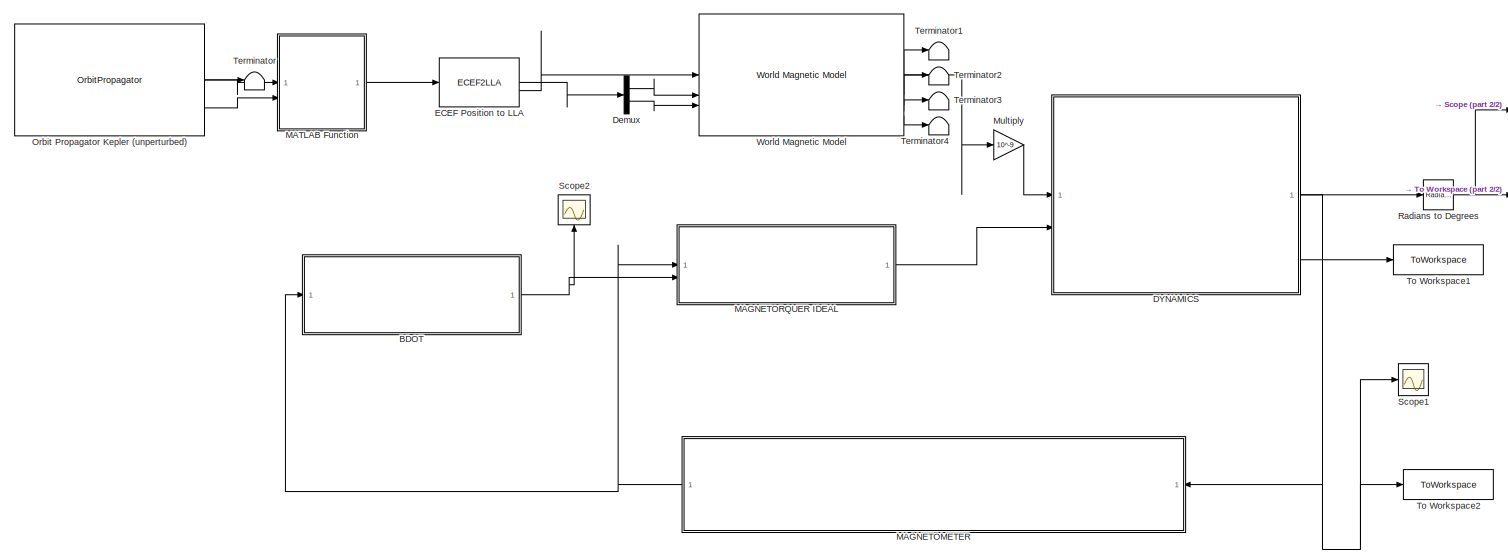
[diagram: root canvas - part 1/2, most of the canvas]
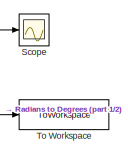
[diagram: root canvas - part 2/2, top right region]
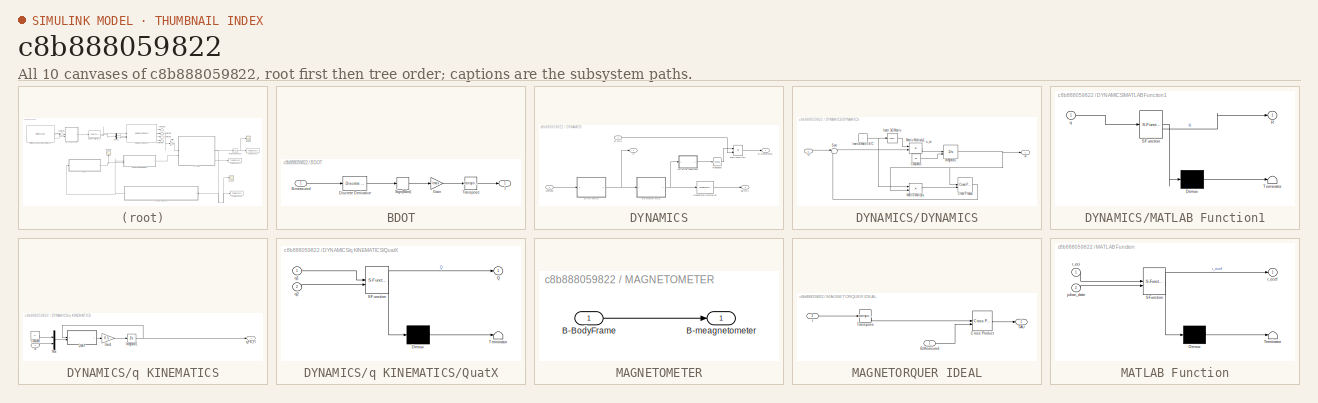
[diagram: thumbnail index - all 10 canvases of the model, root first then tree order]
MODEL slx_c8b888059822
KIND model
CONFIG AbsTol = auto
CONFIG EnableMultiTasking = off
CONFIG FixedStep = auto
CONFIG MaxStep = auto
CONFIG MinStep = auto
CONFIG RelTol = 1e-3
CONFIG SampleTimeConstraint = Unconstrained
CONFIG SolverName = VariableStepAuto
CONFIG StartTime = 0.0
CONFIG StopTime = 16727
BLOCK [SubSystem] BDOT
BLOCK [Inport] BDOT/B-measured
BLOCK [Reference] BDOT/Discrete Derivative  REF=simulink/Discrete/Discrete Derivative
  SourceBlock = simulink/Discrete/Discrete Derivative
  SourceType = Discrete Derivative
BLOCK [Gain] BDOT/Gain
  Gain = -Imax
BLOCK [Outport] BDOT/I
BLOCK [Signum] BDOT/Sign(Bdot)
BLOCK [Math] BDOT/Transpose
  Operator = transpose
BLOCK [SubSystem] DYNAMICS
BLOCK [Outport] DYNAMICS/B-BodyFrame
BLOCK [Inport] DYNAMICS/B-ECI
BLOCK [SubSystem] DYNAMICS/DYNAMICS
BLOCK [Constant] DYNAMICS/DYNAMICS/Constant3
  Value = w0
BLOCK [Reference] DYNAMICS/DYNAMICS/Cross Product  REF=matrix_library/Cross Product
  SourceBlock = matrix_library/Cross Product
  SourceType = CrossProduct
BLOCK [Inport] DYNAMICS/DYNAMICS/G
BLOCK [Constant] DYNAMICS/DYNAMICS/Inertia matrix S//C
  Value = I
BLOCK [Integrator] DYNAMICS/DYNAMICS/Integrator1
  InitialConditionSource = external
BLOCK [Reference] DYNAMICS/DYNAMICS/Invert 3x3 Matrix  REF=aerolibutil/Invert 
3x3 Matrix
  SourceBlock = aerolibutil/Invert \n3x3 Matrix
  SourceType = Invert 3x3 Matrix
BLOCK [Product] DYNAMICS/DYNAMICS/Matrix Multiply
  Multiplication = Matrix(*)
BLOCK [Product] DYNAMICS/DYNAMICS/Matrix Multiply1
  Multiplication = Matrix(*)
BLOCK [Sum] DYNAMICS/DYNAMICS/Sum
  Inputs = |+-
  OutDataTypeStr = Inherit: Same as first input
BLOCK [Outport] DYNAMICS/DYNAMICS/w
BLOCK [SubSystem] DYNAMICS/MATLAB Function1
  ErrorFcn = Stateflow.Translate.translate
  PermitHierarchicalResolution = ExplicitOnly
  SFBlockType = MATLAB Function
  TreatAsAtomicUnit = on
BLOCK [Demux] DYNAMICS/MATLAB Function1/ Demux 
  Outputs = 1
BLOCK [S-Function] DYNAMICS/MATLAB Function1/ SFunction 
  EnableBusSupport = on
  FunctionName = sf_sfun
  PortCounts = [1 2]
  SFcnIsStateOwnerBlock = off
  SFunctionDeploymentMode = off
  Tag = Stateflow S-Function 1
BLOCK [Terminator] DYNAMICS/MATLAB Function1/ Terminator 
BLOCK [Outport] DYNAMICS/MATLAB Function1/R
BLOCK [Inport] DYNAMICS/MATLAB Function1/q
BLOCK [Product] DYNAMICS/MatrixMultiply
  Multiplication = Matrix(*)
BLOCK [Inport] DYNAMICS/Moment
  Port = 2
BLOCK [Reference] DYNAMICS/Quaternion Normalize  REF=sharedutil/Quaternion
Normalize
  LibrarySourceBlock = aerolibutil/Quaternion\nNormalize
  SourceBlock = sharedutil/Quaternion\nNormalize
  SourceType = Quaternion Normalize
BLOCK [Math] DYNAMICS/Transpose
  Operator = transpose
BLOCK [SubSystem] DYNAMICS/q KINEMATICS
BLOCK [Constant] DYNAMICS/q KINEMATICS/Constant
  Value = 0
BLOCK [Gain] DYNAMICS/q KINEMATICS/Gain1
  Gain = 0.5
BLOCK [Integrator] DYNAMICS/q KINEMATICS/Integrator1
  InitialCondition = Q0
BLOCK [Mux] DYNAMICS/q KINEMATICS/Mux
  DisplayOption = bar
  Inputs = 2
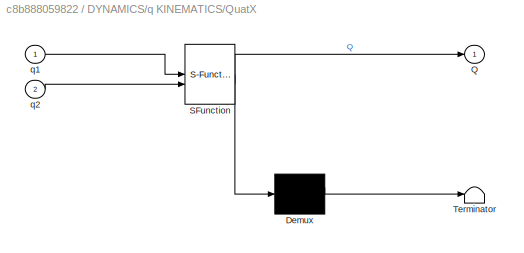
BLOCK [SubSystem] DYNAMICS/q KINEMATICS/QuatX
  ErrorFcn = Stateflow.Translate.translate
  PermitHierarchicalResolution = ExplicitOnly
  SFBlockType = MATLAB Function
  TreatAsAtomicUnit = on
BLOCK [Demux] DYNAMICS/q KINEMATICS/QuatX/ Demux 
  Outputs = 1
BLOCK [S-Function] DYNAMICS/q KINEMATICS/QuatX/ SFunction 
  EnableBusSupport = on
  FunctionName = sf_sfun
  PortCounts = [2 2]
  SFcnIsStateOwnerBlock = off
  SFunctionDeploymentMode = off
  Tag = Stateflow S-Function 3
BLOCK [Terminator] DYNAMICS/q KINEMATICS/QuatX/ Terminator 
BLOCK [Outport] DYNAMICS/q KINEMATICS/QuatX/Q
  VectorParamsAs1DForOutWhenUnconnected = off
BLOCK [Inport] DYNAMICS/q KINEMATICS/QuatX/q1
BLOCK [Inport] DYNAMICS/q KINEMATICS/QuatX/q2
  Port = 2
BLOCK [Outport] DYNAMICS/q KINEMATICS/q_FB_FI
  VectorParamsAs1DForOutWhenUnconnected = off
BLOCK [Inport] DYNAMICS/q KINEMATICS/w
BLOCK [Outport] DYNAMICS/qBODY
  Port = 3
BLOCK [Outport] DYNAMICS/w
  Port = 2
BLOCK [Demux] Demux
  Outputs = 2
BLOCK [ECEF2LLA] ECEF Position to LLA
BLOCK [SubSystem] MAGNETOMETER
  NameLocation = top
BLOCK [Inport] MAGNETOMETER/B-BodyFrame
BLOCK [Outport] MAGNETOMETER/B-meagnetometer
BLOCK [SubSystem] MAGNETORQUER IDEAL
BLOCK [Inport] MAGNETORQUER IDEAL/B-Measured
BLOCK [Reference] MAGNETORQUER IDEAL/Cross Product  REF=matrix_library/Cross Product
  LibrarySourceBlock = simulink/Matrix\nOperations/Cross Product
  SourceBlock = matrix_library/Cross Product
  SourceType = CrossProduct
BLOCK [Inport] MAGNETORQUER IDEAL/I
  Port = 2
BLOCK [Outport] MAGNETORQUER IDEAL/TAU
BLOCK [Math] MAGNETORQUER IDEAL/Transpose
  Operator = transpose
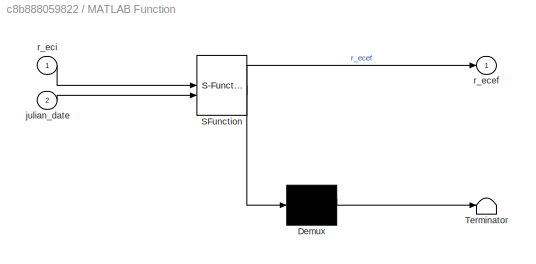
BLOCK [SubSystem] MATLAB Function
  ErrorFcn = Stateflow.Translate.translate
  PermitHierarchicalResolution = ExplicitOnly
  SFBlockType = MATLAB Function
  TreatAsAtomicUnit = on
BLOCK [Demux] MATLAB Function/ Demux 
  Outputs = 1
BLOCK [S-Function] MATLAB Function/ SFunction 
  EnableBusSupport = on
  FunctionName = sf_sfun
  PortCounts = [2 2]
  SFcnIsStateOwnerBlock = off
  SFunctionDeploymentMode = off
  Tag = Stateflow S-Function 2
BLOCK [Terminator] MATLAB Function/ Terminator 
BLOCK [Inport] MATLAB Function/julian_date
  Port = 2
BLOCK [Outport] MATLAB Function/r_ecef
BLOCK [Inport] MATLAB Function/r_eci
BLOCK [Gain] Multiply
  Gain = 10^-9
BLOCK [OrbitPropagator] Orbit Propagator Kepler (unperturbed)
  argPeriapsis = aop
  customJ2 = 1.0826269e-03
  customMu = 4.305e13
  customOmega = 4.06125949e-3
  customR = 3396200
  eccentricity = ecc
  fixedPosition = [-4142689.0 -2676864.7 -4669861.6]
  fixedVelocity = [1452.7 -6720.7 2568.1]
  inclination = inc
  inertialPosition = [3649700.0 3308200.0 -4676600.0]
  inertialVelocity = [-2750.8 6666.4 2573.4]
  raan = raan
  semiMajorAxis = alt
BLOCK [Reference] Radians to Degrees  REF=simulink_extras/Transformations/Radians
to Degrees
  SourceBlock = simulink_extras/Transformations/Radians\nto Degrees
  SourceType = RadiansToDegrees
BLOCK [Scope] Scope
  Floating = off
  NumInputPorts = 1
  ScopeSpecificationString = Simulink.scopes.TimeScopeBlockCfg('CurrentConfiguration', extmgr.ConfigurationSet(extmgr.Configuration('Core','General UI',true),extmgr.Configuration('Core','Source UI',true),extmgr.Configuration('Sources','WiredSimulink',true),extmgr.Configuration('Visuals','Time Domain',true,'SerializedDisplays',{struct('MinYLimReal','-1012.8111','MaxYLimReal','1012.67416','YLabelReal','','MinYLimMag','  0.00000...<+1522ch>
BLOCK [Scope] Scope1
  Floating = off
  NumInputPorts = 1
  ScopeSpecificationString = Simulink.scopes.TimeScopeBlockCfg('CurrentConfiguration', extmgr.ConfigurationSet(extmgr.Configuration('Core','General UI',true),extmgr.Configuration('Core','Source UI',true),extmgr.Configuration('Sources','WiredSimulink',true,'DataLoggingVariableName','ScopeData1'),extmgr.Configuration('Visuals','Time Domain',true,'SerializedDisplays',{struct('MinYLimReal','-0.00007','MaxYLimReal','0.00007','YLab...<+1517ch>
BLOCK [Scope] Scope2
  Floating = off
  NameLocation = right
  NumInputPorts = 1
  ScopeSpecificationString = Simulink.scopes.TimeScopeBlockCfg('CurrentConfiguration', extmgr.ConfigurationSet(extmgr.Configuration('Core','General UI',true),extmgr.Configuration('Core','Source UI',true),extmgr.Configuration('Sources','WiredSimulink',true,'DataLoggingVariableName','ScopeData2'),extmgr.Configuration('Visuals','Time Domain',true,'SerializedDisplays',{struct('MinYLimReal','-0.26787','MaxYLimReal','0.26787','YLab...<+1499ch>
BLOCK [Terminator] Terminator
BLOCK [Terminator] Terminator1
BLOCK [Terminator] Terminator2
BLOCK [Terminator] Terminator3
BLOCK [Terminator] Terminator4
BLOCK [ToWorkspace] To Workspace
  FixptAsFi = on
  MaxDataPoints = inf
  SampleTime = -1
  SaveFormat = Timeseries
  VariableName = wDEG
BLOCK [ToWorkspace] To Workspace1
  FixptAsFi = on
  MaxDataPoints = inf
  SampleTime = -1
  SaveFormat = Timeseries
  VariableName = qOUT
BLOCK [ToWorkspace] To Workspace2
  FixptAsFi = on
  MaxDataPoints = inf
  SampleTime = -1
  SaveFormat = Timeseries
  VariableName = Bout
BLOCK [Reference] World Magnetic Model  REF=aerolibgravity2/World Magnetic Model
  AttributesFormatString = %<model>
  SourceBlock = aerolibgravity2/World Magnetic Model
  SourceType = WorldMagneticModel
ANNOTATION DYNAMICS/DYNAMICS: w_dot
LINE BDOT/B-measured:1 -> BDOT/Discrete Derivative:1
LINE BDOT/Discrete Derivative:1 -> BDOT/Sign(Bdot):1
LINE BDOT/Gain:1 -> BDOT/Transpose:1
LINE BDOT/Sign(Bdot):1 -> BDOT/Gain:1
LINE BDOT/Transpose:1 -> BDOT/I:1
NET BDOT:1 -> MAGNETORQUER IDEAL:2, Scope2:1
LINE DYNAMICS/B-ECI:1 -> DYNAMICS/MatrixMultiply:2
LINE DYNAMICS/DYNAMICS/Constant3:1 -> DYNAMICS/DYNAMICS/Integrator1:2
LINE DYNAMICS/DYNAMICS/Cross Product:1 -> DYNAMICS/DYNAMICS/Sum:2
LINE DYNAMICS/DYNAMICS/G:1 -> DYNAMICS/DYNAMICS/Sum:1
NET DYNAMICS/DYNAMICS/Inertia matrix S//C:1 -> DYNAMICS/DYNAMICS/Invert 3x3 Matrix:1, DYNAMICS/DYNAMICS/Matrix Multiply:1
NET DYNAMICS/DYNAMICS/Integrator1:1 -> DYNAMICS/DYNAMICS/Cross Product:1, DYNAMICS/DYNAMICS/Matrix Multiply:2, DYNAMICS/DYNAMICS/w:1
LINE DYNAMICS/DYNAMICS/Invert 3x3 Matrix:1 -> DYNAMICS/DYNAMICS/Matrix Multiply1:1
LINE DYNAMICS/DYNAMICS/Matrix Multiply1:1 -> DYNAMICS/DYNAMICS/Integrator1:1
LINE DYNAMICS/DYNAMICS/Matrix Multiply:1 -> DYNAMICS/DYNAMICS/Cross Product:2
LINE DYNAMICS/DYNAMICS/Sum:1 -> DYNAMICS/DYNAMICS/Matrix Multiply1:2
NET DYNAMICS/DYNAMICS:1 -> DYNAMICS/q KINEMATICS:1, DYNAMICS/w:1
LINE DYNAMICS/MATLAB Function1:1 -> DYNAMICS/Transpose:1
LINE DYNAMICS/MatrixMultiply:1 -> DYNAMICS/B-BodyFrame:1
LINE DYNAMICS/Moment:1 -> DYNAMICS/DYNAMICS:1
LINE DYNAMICS/Quaternion Normalize:1 -> DYNAMICS/qBODY:1
LINE DYNAMICS/Transpose:1 -> DYNAMICS/MatrixMultiply:1
LINE DYNAMICS/q KINEMATICS/Constant:1 -> DYNAMICS/q KINEMATICS/Mux:1
LINE DYNAMICS/q KINEMATICS/Gain1:1 -> DYNAMICS/q KINEMATICS/Integrator1:1
NET DYNAMICS/q KINEMATICS/Integrator1:1 -> DYNAMICS/q KINEMATICS/QuatX:1, DYNAMICS/q KINEMATICS/q_FB_FI:1
LINE DYNAMICS/q KINEMATICS/Mux:1 -> DYNAMICS/q KINEMATICS/QuatX:2
LINE DYNAMICS/q KINEMATICS/QuatX:1 -> DYNAMICS/q KINEMATICS/Gain1:1
LINE DYNAMICS/q KINEMATICS/w:1 -> DYNAMICS/q KINEMATICS/Mux:2
NET DYNAMICS/q KINEMATICS:1 -> DYNAMICS/MATLAB Function1:1, DYNAMICS/Quaternion Normalize:1
NET DYNAMICS:1 -> MAGNETOMETER:1, Scope1:1, To Workspace2:1
LINE DYNAMICS:2 -> Radians to Degrees:1
LINE DYNAMICS:3 -> To Workspace1:1
LINE Demux:1 -> World Magnetic Model:2
LINE Demux:2 -> World Magnetic Model:3
LINE ECEF Position to LLA:1 -> Demux:1
LINE ECEF Position to LLA:2 -> World Magnetic Model:1
LINE MAGNETOMETER/B-BodyFrame:1 -> MAGNETOMETER/B-meagnetometer:1
NET MAGNETOMETER:1 -> BDOT:1, MAGNETORQUER IDEAL:1
LINE MAGNETORQUER IDEAL/B-Measured:1 -> MAGNETORQUER IDEAL/Cross Product:2
LINE MAGNETORQUER IDEAL/Cross Product:1 -> MAGNETORQUER IDEAL/TAU:1
LINE MAGNETORQUER IDEAL/I:1 -> MAGNETORQUER IDEAL/Transpose:1
LINE MAGNETORQUER IDEAL/Transpose:1 -> MAGNETORQUER IDEAL/Cross Product:1
LINE MAGNETORQUER IDEAL:1 -> DYNAMICS:2
LINE MATLAB Function:1 -> ECEF Position to LLA:1
LINE Multiply:1 -> DYNAMICS:1
LINE Orbit Propagator Kepler (unperturbed):1 -> MATLAB Function:1
LINE Orbit Propagator Kepler (unperturbed):2 -> Terminator:1
LINE Orbit Propagator Kepler (unperturbed):3 -> MATLAB Function:2
NET Radians to Degrees:1 -> Scope:1, To Workspace:1
LINE World Magnetic Model:1 -> Multiply:1
LINE World Magnetic Model:2 -> Terminator1:1
LINE World Magnetic Model:3 -> Terminator2:1
LINE World Magnetic Model:4 -> Terminator3:1
LINE World Magnetic Model:5 -> Terminator4:1
note: NET lines group one-source signal fan-out (src -> all destinations, sorted); 1:1 wires keep LINE
CHART MATLAB Function states=1 transitions=1
  STATE_LABEL 'eML_blk_kernel()'
  STATE_LABEL 'SCRIPT:\nfunction r_ecef = eci2ecef(r_eci, julian_date)\n    % ECI to ECEF Conversion\n    %\n    % Inputs:\n    %   r_eci       - (3x1) Vector in ECI frame\n    %   julian_date - Julian date\n    %\n    % Output:\n    %   r_ecef      - (3x1) Vector in ECEF frame\n\n    % Constants\n    JD_2000 = 2451545.0; % Julian Date of J2000.0\n    sec_per_day = 86400; % Seconds per day\n\n    % Compute the number of days f...<+1517ch>'
CHART DYNAMICS/q KINEMATICS/QuatX states=1 transitions=1
  STATE_LABEL 'eML_blk_kernel()'
  STATE_LABEL 'SCRIPT:\nfunction Q = Quat_Product(q1,q2)\n% This function performs the quaternions multiplication\n%\nq10 = q1(1);\nq1v = q1(2:4);\n%\nq20 = q2(1);\nq2v = q2(2:4);\n%\nQ0 = q10*q20 - dot(q1v, q2v);\nQv = q10*q2v + q20*q1v + cross(q1v,q2v);\n%\nQ = [Q0;Qv];\n\n'
CHART DYNAMICS/MATLAB Function1 states=1 transitions=1
  STATE_LABEL 'eML_blk_kernel()'
  STATE_LABEL 'SCRIPT:\nfunction R = rotation_transform(q)\n    % rotation_transform - Convert quaternion to rotation matrix or apply specific rotation\n    % Input:\n    %   q - quaternion (4x1 vector)\n    % Output:\n    %   R - rotation matrix (3x3 matrix)\n    \n    % Ensure quaternion is normalized\n    q = q / norm(q);\n    \n    % Quaternion components\n    q0 = q(1);\n    q1 = q(2);\n    q2 = q(3);\n    q3 = q(4);\n    ...<+243ch>'
CHART  states=0 transitions=0
CHART  states=0 transitions=0
CHART  states=0 transitions=0
